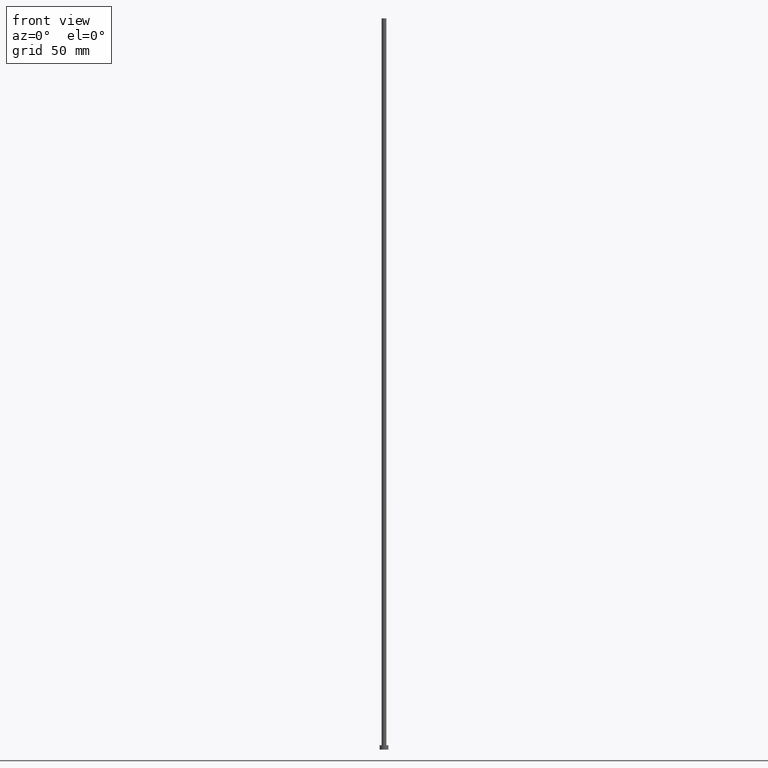
[diagram: clean part render]
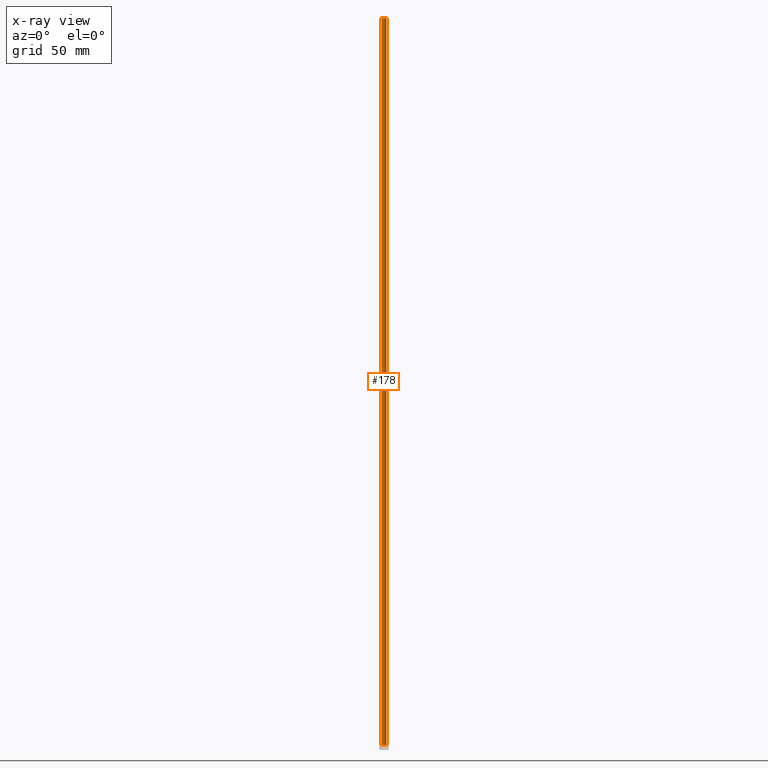
[diagram: x-ray — body ghosted, one internal face saturated and labeled with its STEP entity id]
A machine part, front view, then the same camera in x-ray: the body is ghosted and one INTERNAL B-rep face — a face not visible from any outside direction — is saturated and labeled: STEP entity #178.
In plain terms, the highlighted cylindrical surface (edge-blend (fillet) strip) has radius 1.6 mm, axis along (-0, -0, -1).
Its self-contained STEP definition (entity closure, byte-faithful):
#6 = CARTESIAN_POINT ( 'NONE',  ( -1.600000000000000089, 0.000000000000000000, 3.000000000000000000 ) ) ;
#15 = DIRECTION ( 'NONE',  ( -0.000000000000000000, -0.000000000000000000, -1.000000000000000000 ) ) ;
#18 = CARTESIAN_POINT ( 'NONE',  ( 0.000000000000000000, 0.000000000000000000, 3.000000000000000000 ) ) ;
#21 = LINE ( 'NONE', #86, #254 ) ;
#30 = ORIENTED_EDGE ( 'NONE', *, *, #159, .T. ) ;
#31 = VERTEX_POINT ( 'NONE', #250 ) ;
#55 = LINE ( 'NONE', #210, #212 ) ;
#60 = CIRCLE ( 'NONE', #220, 1.600000000000000089 ) ;
#84 = CIRCLE ( 'NONE', #158, 1.600000000000000089 ) ;
#86 = CARTESIAN_POINT ( 'NONE',  ( 1.600000000000000089, 1.959434878635764737E-16, 500.0000000000000000 ) ) ;
#88 = DIRECTION ( 'NONE',  ( -0.000000000000000000, -0.000000000000000000, -1.000000000000000000 ) ) ;
#91 = EDGE_LOOP ( 'NONE', ( #153, #30, #168, #174 ) ) ;
#101 = DIRECTION ( 'NONE',  ( 0.000000000000000000, 0.000000000000000000, 1.000000000000000000 ) ) ;
#102 = AXIS2_PLACEMENT_3D ( 'NONE', #179, #180, #177 ) ;
#110 = VERTEX_POINT ( 'NONE', #129 ) ;
#116 = DIRECTION ( 'NONE',  ( 0.000000000000000000, 0.000000000000000000, 1.000000000000000000 ) ) ;
#119 = EDGE_CURVE ( 'NONE', #110, #224, #55, .T. ) ;
#126 = VERTEX_POINT ( 'NONE', #251 ) ;
#129 = CARTESIAN_POINT ( 'NONE',  ( -1.600000000000000089, 0.000000000000000000, 500.0000000000000000 ) ) ;
#153 = ORIENTED_EDGE ( 'NONE', *, *, #232, .F. ) ;
#156 = DIRECTION ( 'NONE',  ( 1.000000000000000000, 0.000000000000000000, 0.000000000000000000 ) ) ;
#157 = CYLINDRICAL_SURFACE ( 'NONE', #102, 1.600000000000000089 ) ;
#158 = AXIS2_PLACEMENT_3D ( 'NONE', #18, #116, #156 ) ;
#159 = EDGE_CURVE ( 'NONE', #31, #126, #21, .T. ) ;
#160 = FACE_OUTER_BOUND ( 'NONE', #91, .T. ) ;
#168 = ORIENTED_EDGE ( 'NONE', *, *, #200, .T. ) ;
#174 = ORIENTED_EDGE ( 'NONE', *, *, #119, .F. ) ;
#177 = DIRECTION ( 'NONE',  ( -1.000000000000000000, 0.000000000000000000, 0.000000000000000000 ) ) ;
#178 = ADVANCED_FACE ( 'NONE', ( #160 ), #157, .T. ) ;
#179 = CARTESIAN_POINT ( 'NONE',  ( 0.000000000000000000, 0.000000000000000000, 500.0000000000000000 ) ) ;
#180 = DIRECTION ( 'NONE',  ( -0.000000000000000000, -0.000000000000000000, -1.000000000000000000 ) ) ;
#198 = CARTESIAN_POINT ( 'NONE',  ( 0.000000000000000000, 0.000000000000000000, 500.0000000000000000 ) ) ;
#200 = EDGE_CURVE ( 'NONE', #126, #224, #84, .T. ) ;
#210 = CARTESIAN_POINT ( 'NONE',  ( -1.600000000000000089, 0.000000000000000000, 500.0000000000000000 ) ) ;
#212 = VECTOR ( 'NONE', #15, 1000.000000000000000 ) ;
#220 = AXIS2_PLACEMENT_3D ( 'NONE', #198, #101, #236 ) ;
#224 = VERTEX_POINT ( 'NONE', #6 ) ;
#232 = EDGE_CURVE ( 'NONE', #31, #110, #60, .T. ) ;
#236 = DIRECTION ( 'NONE',  ( 1.000000000000000000, 0.000000000000000000, 0.000000000000000000 ) ) ;
#250 = CARTESIAN_POINT ( 'NONE',  ( 1.600000000000000089, 1.959434878635764737E-16, 500.0000000000000000 ) ) ;
#251 = CARTESIAN_POINT ( 'NONE',  ( 1.600000000000000089, 1.959434878635764737E-16, 3.000000000000000000 ) ) ;
#254 = VECTOR ( 'NONE', #88, 1000.000000000000000 ) ;